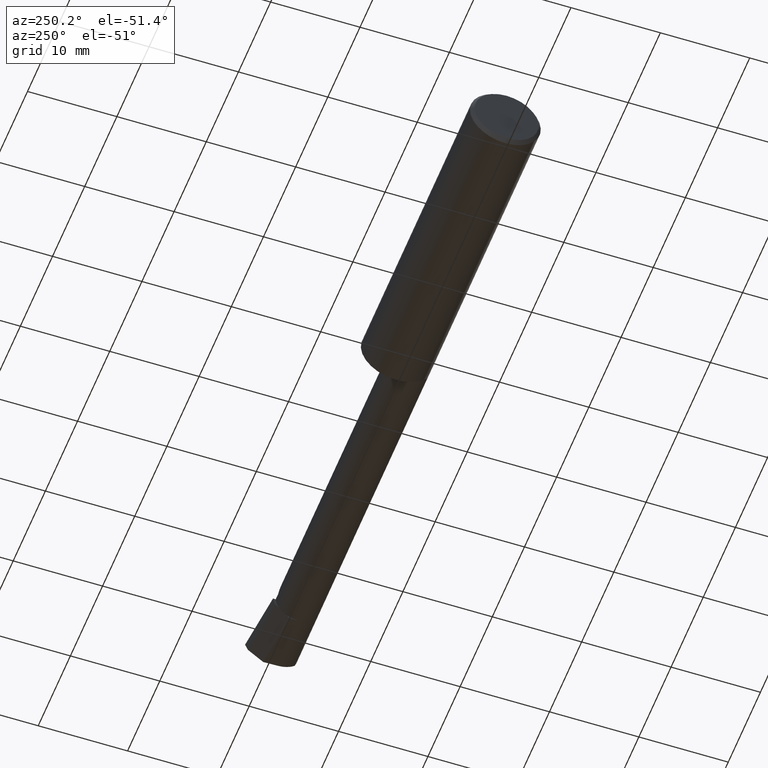
[diagram: clean part render]
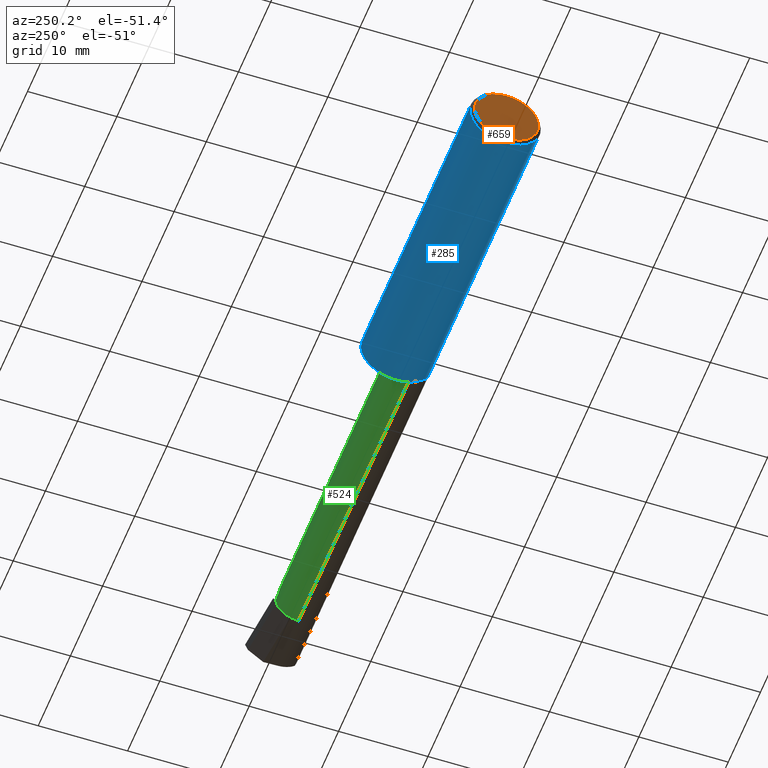
[diagram: same view with three faces highlighted in distinct colors, each labeled with its STEP entity id]
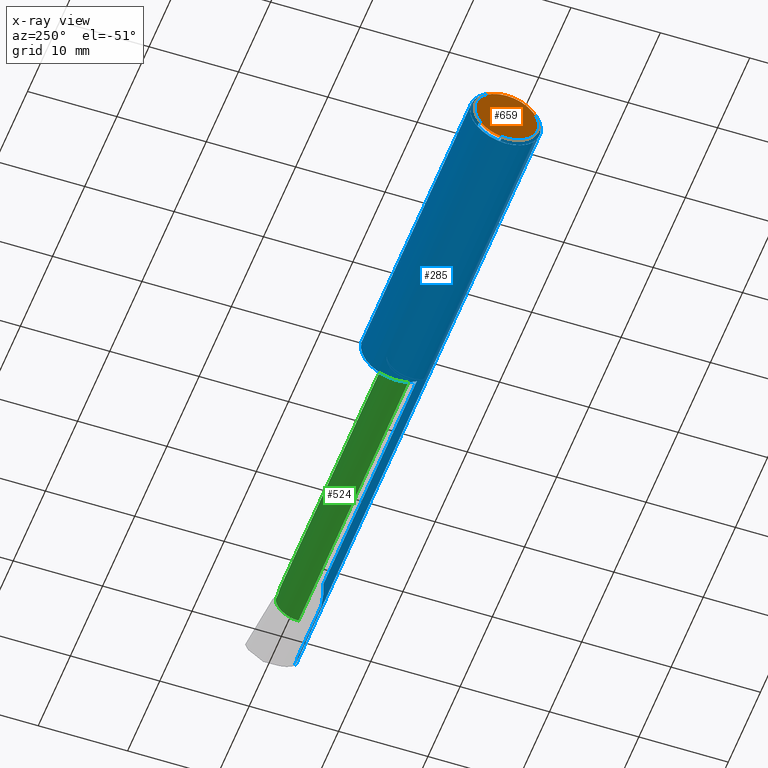
[diagram: x-ray of the same camera — body ghosted, the three highlighted faces saturated]
A machine part, auxiliary view with three faces highlighted in distinct colors.
The next image is the same camera in x-ray (body ghosted, the three faces saturated) — at least one of them is partly hidden behind the body in this view.
Their STEP definitions:

[orange] entity #659 — the highlighted planar face has unit normal (1, 0, 0).
#48 = DIRECTION ( 'NONE',  ( 0.0000000000000000000, 0.0000000000000000000, 1.000000000000000000 ) ) ;
#83 = FACE_OUTER_BOUND ( 'NONE', #604, .T. ) ;
#105 = DIRECTION ( 'NONE',  ( -1.000000000000000000, -0.0000000000000000000, -0.0000000000000000000 ) ) ;
#108 = ORIENTED_EDGE ( 'NONE', *, *, #115, .T. ) ;
#115 = EDGE_CURVE ( 'NONE', #209, #642, #367, .T. ) ;
#144 = DIRECTION ( 'NONE',  ( 0.0000000000000000000, 0.0000000000000000000, 1.000000000000000000 ) ) ;
#191 = DIRECTION ( 'NONE',  ( -1.000000000000000000, -0.0000000000000000000, -0.0000000000000000000 ) ) ;
#197 = CARTESIAN_POINT ( 'NONE',  ( 0.0000000000000000000, 0.0000000000000000000, 0.0000000000000000000 ) ) ;
#209 = VERTEX_POINT ( 'NONE', #673 ) ;
#224 = CIRCLE ( 'NONE', #559, 0.1410999999999996146 ) ;
#297 = DIRECTION ( 'NONE',  ( 0.0000000000000000000, 0.0000000000000000000, -1.000000000000000000 ) ) ;
#345 = AXIS2_PLACEMENT_3D ( 'NONE', #197, #191, #144 ) ;
#348 = AXIS2_PLACEMENT_3D ( 'NONE', #355, #621, #297 ) ;
#355 = CARTESIAN_POINT ( 'NONE',  ( 0.0000000000000000000, 0.0000000000000000000, 0.0000000000000000000 ) ) ;
#367 = CIRCLE ( 'NONE', #345, 0.1410999999999996146 ) ;
#402 = EDGE_CURVE ( 'NONE', #642, #209, #224, .T. ) ;
#475 = CARTESIAN_POINT ( 'NONE',  ( 0.0000000000000000000, 0.0000000000000000000, -0.1410999999999996146 ) ) ;
#509 = CARTESIAN_POINT ( 'NONE',  ( 0.0000000000000000000, 0.0000000000000000000, 0.0000000000000000000 ) ) ;
#559 = AXIS2_PLACEMENT_3D ( 'NONE', #509, #105, #48 ) ;
#561 = ORIENTED_EDGE ( 'NONE', *, *, #402, .T. ) ;
#572 = PLANE ( 'NONE',  #348 ) ;
#604 = EDGE_LOOP ( 'NONE', ( #561, #108 ) ) ;
#621 = DIRECTION ( 'NONE',  ( 1.000000000000000000, 0.0000000000000000000, 0.0000000000000000000 ) ) ;
#642 = VERTEX_POINT ( 'NONE', #475 ) ;
#659 = ADVANCED_FACE ( 'NONE', ( #83 ), #572, .F. ) ;
#673 = CARTESIAN_POINT ( 'NONE',  ( 0.0000000000000000000, 1.819825143532964315E-17, 0.1410999999999996146 ) ) ;

[blue] entity #285 — the highlighted cylindrical surface (partial cylindrical patch) has radius 3.9649 mm, axis along (-1, -0, -0).
#6 = CARTESIAN_POINT ( 'NONE',  ( 2.994029609882220999, -0.1561000000000000165, -6.741913824051284207E-17 ) ) ;
#17 = VERTEX_POINT ( 'NONE', #6 ) ;
#31 = AXIS2_PLACEMENT_3D ( 'NONE', #249, #251, #315 ) ;
#37 = CARTESIAN_POINT ( 'NONE',  ( 2.700000000000000178, -0.1560999999999999888, -2.449293598294708386E-17 ) ) ;
#39 = VECTOR ( 'NONE', #202, 39.37007874015748143 ) ;
#63 = EDGE_CURVE ( 'NONE', #17, #284, #196, .T. ) ;
#65 = VECTOR ( 'NONE', #354, 39.37007874015748143 ) ;
#67 = EDGE_CURVE ( 'NONE', #337, #246, #408, .T. ) ;
#68 = CARTESIAN_POINT ( 'NONE',  ( 0.0000000000000000000, -0.05756040305626783371, 0.1450999999999999512 ) ) ;
#73 = ORIENTED_EDGE ( 'NONE', *, *, #287, .T. ) ;
#78 = ORIENTED_EDGE ( 'NONE', *, *, #63, .T. ) ;
#86 = ORIENTED_EDGE ( 'NONE', *, *, #102, .T. ) ;
#96 = EDGE_CURVE ( 'NONE', #611, #17, #302, .T. ) ;
#102 = EDGE_CURVE ( 'NONE', #529, #479, #112, .T. ) ;
#112 = LINE ( 'NONE', #281, #690 ) ;
#114 = VERTEX_POINT ( 'NONE', #257 ) ;
#116 = ORIENTED_EDGE ( 'NONE', *, *, #185, .F. ) ;
#120 =( BOUNDED_CURVE ( )  B_SPLINE_CURVE ( 3, ( #684, #680, #627, #645 ),
 .UNSPECIFIED., .F., .T. ) 
 B_SPLINE_CURVE_WITH_KNOTS ( ( 4, 4 ),
 ( 4.712388980384689674, 5.140782042693055942 ),
 .UNSPECIFIED. ) 
 CURVE ( )  GEOMETRIC_REPRESENTATION_ITEM ( )  RATIONAL_B_SPLINE_CURVE ( ( 1.000000000000000000, 0.9847649979006014576, 0.9847649979006014576, 1.000000000000000000 ) ) 
 REPRESENTATION_ITEM ( '' )  );
#121 = CIRCLE ( 'NONE', #602, 0.1560999999999999888 ) ;
#122 = VERTEX_POINT ( 'NONE', #293 ) ;
#134 = EDGE_CURVE ( 'NONE', #611, #397, #323, .T. ) ;
#137 = CARTESIAN_POINT ( 'NONE',  ( 1.375000000000000000, -0.1419939393939393113, -0.06484544066771588677 ) ) ;
#140 = CARTESIAN_POINT ( 'NONE',  ( 1.362996561902687809, -0.1373850824029525242, -0.07416982835688742948 ) ) ;
#146 = CYLINDRICAL_SURFACE ( 'NONE', #419, 0.1560999999999999888 ) ;
#148 = CARTESIAN_POINT ( 'NONE',  ( 2.052500000000000213, -0.1419939393939393391, 0.06484544066771595616 ) ) ;
#150 = EDGE_CURVE ( 'NONE', #529, #576, #231, .T. ) ;
#158 = ORIENTED_EDGE ( 'NONE', *, *, #96, .T. ) ;
#159 = ORIENTED_EDGE ( 'NONE', *, *, #67, .T. ) ;
#164 = DIRECTION ( 'NONE',  ( 0.0000000000000000000, 0.0000000000000000000, -1.000000000000000000 ) ) ;
#165 = DIRECTION ( 'NONE',  ( 1.000000000000000000, 0.0000000000000000000, 0.0000000000000000000 ) ) ;
#174 = EDGE_CURVE ( 'NONE', #114, #479, #424, .T. ) ;
#178 = EDGE_CURVE ( 'NONE', #361, #122, #521, .T. ) ;
#185 = EDGE_CURVE ( 'NONE', #576, #246, #121, .T. ) ;
#195 = CARTESIAN_POINT ( 'NONE',  ( 1.367803744158915924, -0.1404244429940954553, -0.06818941713933171500 ) ) ;
#196 = LINE ( 'NONE', #416, #65 ) ;
#198 = CARTESIAN_POINT ( 'NONE',  ( 1.356590010709525229, -0.1296703571699488189, -0.08713627291423986509 ) ) ;
#199 = ORIENTED_EDGE ( 'NONE', *, *, #532, .F. ) ;
#202 = DIRECTION ( 'NONE',  ( 1.000000000000000000, 0.0000000000000000000, 0.0000000000000000000 ) ) ;
#215 = CARTESIAN_POINT ( 'NONE',  ( 1.350000000000000089, -0.09941818181818193323, 0.1203463132961160309 ) ) ;
#222 = VECTOR ( 'NONE', #290, 39.37007874015748143 ) ;
#223 = B_SPLINE_CURVE_WITH_KNOTS ( 'NONE', 3,
 ( #137, #484, #630, #359, #195, #486, #140, #537, #198, #581, #247, #632, #311, #685 ),
 .UNSPECIFIED., .F., .F.,
 ( 4, 2, 2, 2, 2, 2, 4 ),
 ( 1.961289441070630364E-07, 0.0001258819157031949344, 0.0002515677024622827991, 0.0005029392759804585285, 0.001005682423016819637, 0.001508425570053180962, 0.002011168717089542504 ),
 .UNSPECIFIED. ) ;
#231 = CIRCLE ( 'NONE', #510, 0.1560999999999999888 ) ;
#239 = CARTESIAN_POINT ( 'NONE',  ( 1.350000000000000089, 0.0000000000000000000, 0.0000000000000000000 ) ) ;
#240 = CARTESIAN_POINT ( 'NONE',  ( 0.01499999999999999424, 0.0000000000000000000, 0.0000000000000000000 ) ) ;
#246 = VERTEX_POINT ( 'NONE', #261 ) ;
#247 = CARTESIAN_POINT ( 'NONE',  ( 1.352063943834881377, -0.1181307192064763728, -0.1022448908112566918 ) ) ;
#248 = CARTESIAN_POINT ( 'NONE',  ( 1.350000000000000311, -0.1044500923568690148, 0.1161894481365070009 ) ) ;
#249 = CARTESIAN_POINT ( 'NONE',  ( 1.350000000000000089, 0.0000000000000000000, 0.0000000000000000000 ) ) ;
#251 = DIRECTION ( 'NONE',  ( 1.000000000000000000, 0.0000000000000000000, 0.0000000000000000000 ) ) ;
#253 = DIRECTION ( 'NONE',  ( 1.000000000000000000, 0.0000000000000000000, 0.0000000000000000000 ) ) ;
#255 = DIRECTION ( 'NONE',  ( 0.0000000000000000000, 0.0000000000000000000, 1.000000000000000000 ) ) ;
#257 = CARTESIAN_POINT ( 'NONE',  ( 1.350000000000000089, -0.09941818181818193323, -0.1203463132961160309 ) ) ;
#261 = CARTESIAN_POINT ( 'NONE',  ( 0.01499999999999999424, -0.05756040305626774350, 0.1451000000000000068 ) ) ;
#266 = CARTESIAN_POINT ( 'NONE',  ( 1.375000000000000000, -0.1419939393939393113, -0.06484544066771588677 ) ) ;
#271 = CARTESIAN_POINT ( 'NONE',  ( 2.994029609882220999, -0.1561000000000000165, -6.741913824051284207E-17 ) ) ;
#277 = CARTESIAN_POINT ( 'NONE',  ( 2.991270569402207702, -0.1560999999999999333, -0.02246288137099534954 ) ) ;
#281 = CARTESIAN_POINT ( 'NONE',  ( 0.0000000000000000000, 0.05756040305626788228, 0.1450999999999999235 ) ) ;
#284 = VERTEX_POINT ( 'NONE', #37 ) ;
#285 = ADVANCED_FACE ( 'NONE', ( #465 ), #146, .T. ) ;
#287 = EDGE_CURVE ( 'NONE', #284, #313, #120, .T. ) ;
#290 = DIRECTION ( 'NONE',  ( -1.000000000000000000, -0.0000000000000000000, -0.0000000000000000000 ) ) ;
#293 = CARTESIAN_POINT ( 'NONE',  ( 1.375000000000000000, -0.1419939393939392003, 0.06484544066771598392 ) ) ;
#296 = CARTESIAN_POINT ( 'NONE',  ( 2.988699611492194652, -0.1513252362624134539, -0.04441242967472209396 ) ) ;
#302 =( BOUNDED_CURVE ( )  B_SPLINE_CURVE ( 3, ( #310, #296, #277, #271 ),
 .UNSPECIFIED., .F., .F. ) 
 B_SPLINE_CURVE_WITH_KNOTS ( ( 4, 4 ),
 ( 0.9323538202067606084, 1.360746882515126543 ),
 .UNSPECIFIED. ) 
 CURVE ( )  GEOMETRIC_REPRESENTATION_ITEM ( )  RATIONAL_B_SPLINE_CURVE ( ( 1.000000000000000000, 0.9847649979006014576, 0.9847649979006014576, 1.000000000000000000 ) ) 
 REPRESENTATION_ITEM ( '' )  );
#309 = CARTESIAN_POINT ( 'NONE',  ( 0.01499999999999999424, 0.0000000000000000000, -0.1560999999999999888 ) ) ;
#310 = CARTESIAN_POINT ( 'NONE',  ( 2.986434241799654110, -0.1419939393939393391, -0.06484544066771595616 ) ) ;
#311 = CARTESIAN_POINT ( 'NONE',  ( 1.349999999999999867, -0.1044772303701486382, -0.1161670294028995659 ) ) ;
#313 = VERTEX_POINT ( 'NONE', #551 ) ;
#315 = DIRECTION ( 'NONE',  ( 0.0000000000000000000, 0.0000000000000000000, -1.000000000000000000 ) ) ;
#316 = CARTESIAN_POINT ( 'NONE',  ( 0.01499999999999999424, 0.0000000000000000000, 0.0000000000000000000 ) ) ;
#321 = DIRECTION ( 'NONE',  ( -1.000000000000000000, -0.0000000000000000000, -0.0000000000000000000 ) ) ;
#323 = LINE ( 'NONE', #618, #222 ) ;
#337 = VERTEX_POINT ( 'NONE', #438 ) ;
#354 = DIRECTION ( 'NONE',  ( -1.000000000000000000, -0.0000000000000000000, -0.0000000000000000000 ) ) ;
#359 = CARTESIAN_POINT ( 'NONE',  ( 1.368987086440955236, -0.1409404987250980346, -0.06711069163632696344 ) ) ;
#361 = VERTEX_POINT ( 'NONE', #482 ) ;
#371 = EDGE_LOOP ( 'NONE', ( #616, #158, #78, #73, #471, #587, #199, #159, #116, #525, #86, #710, #511 ) ) ;
#372 = CARTESIAN_POINT ( 'NONE',  ( 1.353262464810605747, -0.1222000088982462124, 0.09733625715976103321 ) ) ;
#382 = CARTESIAN_POINT ( 'NONE',  ( 1.352040506864491620, -0.1180407066556270063, 0.1023492120876696165 ) ) ;
#387 = CARTESIAN_POINT ( 'NONE',  ( 1.350415155711666371, -0.1091772789608304872, 0.1117554983051642081 ) ) ;
#389 = CARTESIAN_POINT ( 'NONE',  ( 1.363017092274624975, -0.1374043365808045869, 0.07413505991998654843 ) ) ;
#393 = CARTESIAN_POINT ( 'NONE',  ( 1.358665904659250856, -0.1330436853938332664, 0.08186319721956639150 ) ) ;
#397 = VERTEX_POINT ( 'NONE', #266 ) ;
#398 = CARTESIAN_POINT ( 'NONE',  ( 1.356590655429605885, -0.1296720675120677513, 0.08713405786343429715 ) ) ;
#403 = CARTESIAN_POINT ( 'NONE',  ( 1.371727793412431895, -0.1417279534125322760, 0.06543130843947160546 ) ) ;
#406 = CARTESIAN_POINT ( 'NONE',  ( 1.368988484139260553, -0.1409410548628159121, 0.06710952210203038892 ) ) ;
#408 = LINE ( 'NONE', #68, #667 ) ;
#410 = CARTESIAN_POINT ( 'NONE',  ( 1.364666516289592790, -0.1387430930441309329, 0.07158177069671509130 ) ) ;
#413 = CARTESIAN_POINT ( 'NONE',  ( 1.375000000000000000, -0.1419939393939392003, 0.06484544066771598392 ) ) ;
#416 = CARTESIAN_POINT ( 'NONE',  ( 5.398554261502604010E-32, -0.1560999999999999333, 3.697364387449882376E-16 ) ) ;
#419 = AXIS2_PLACEMENT_3D ( 'NONE', #589, #676, #495 ) ;
#422 = CARTESIAN_POINT ( 'NONE',  ( 1.367808428589329495, -0.1404263024719111519, 0.06818548243543454124 ) ) ;
#423 = CARTESIAN_POINT ( 'NONE',  ( 1.373328253254594289, -0.1419939393940947703, 0.06484544066737571444 ) ) ;
#424 = CIRCLE ( 'NONE', #540, 0.1560999999999999888 ) ;
#431 = DIRECTION ( 'NONE',  ( -1.000000000000000000, -0.0000000000000000000, -0.0000000000000000000 ) ) ;
#438 = CARTESIAN_POINT ( 'NONE',  ( 1.350000000000000089, -0.05756040305626776432, 0.1451000000000000068 ) ) ;
#439 = CARTESIAN_POINT ( 'NONE',  ( 0.01499999999999999424, 0.05756040305626788228, 0.1450999999999999235 ) ) ;
#457 = CIRCLE ( 'NONE', #31, 0.1560999999999999888 ) ;
#465 = FACE_OUTER_BOUND ( 'NONE', #371, .T. ) ;
#471 = ORIENTED_EDGE ( 'NONE', *, *, #485, .F. ) ;
#479 = VERTEX_POINT ( 'NONE', #544 ) ;
#482 = CARTESIAN_POINT ( 'NONE',  ( 1.350000000000000089, -0.09941818181818193323, 0.1203463132961160309 ) ) ;
#484 = CARTESIAN_POINT ( 'NONE',  ( 1.373318217257565088, -0.1419939393939393668, -0.06484544066771587290 ) ) ;
#485 = EDGE_CURVE ( 'NONE', #122, #313, #609, .T. ) ;
#486 = CARTESIAN_POINT ( 'NONE',  ( 1.364650979716348411, -0.1387334617349066934, -0.07160083655282353798 ) ) ;
#495 = DIRECTION ( 'NONE',  ( 0.0000000000000000000, 0.0000000000000000000, 1.000000000000000000 ) ) ;
#510 = AXIS2_PLACEMENT_3D ( 'NONE', #240, #550, #612 ) ;
#511 = ORIENTED_EDGE ( 'NONE', *, *, #682, .F. ) ;
#521 = B_SPLINE_CURVE_WITH_KNOTS ( 'NONE', 3,
 ( #215, #248, #387, #382, #372, #398, #393, #389, #410, #422, #406, #403, #423, #413 ),
 .UNSPECIFIED., .F., .F.,
 ( 4, 2, 2, 2, 2, 2, 4 ),
 ( 0.0001856976868807112932, 0.0006805519038525574115, 0.001175406120824403584, 0.001670260337796249757, 0.001917687446282172409, 0.002041401000525133735, 0.002165114554768095279 ),
 .UNSPECIFIED. ) ;
#525 = ORIENTED_EDGE ( 'NONE', *, *, #150, .F. ) ;
#529 = VERTEX_POINT ( 'NONE', #439 ) ;
#532 = EDGE_CURVE ( 'NONE', #337, #361, #457, .T. ) ;
#534 = CARTESIAN_POINT ( 'NONE',  ( 2.986434241799654110, -0.1419939393939393391, -0.06484544066771595616 ) ) ;
#537 = CARTESIAN_POINT ( 'NONE',  ( 1.358682090340783466, -0.1330572531291641103, -0.08183785561185245860 ) ) ;
#540 = AXIS2_PLACEMENT_3D ( 'NONE', #239, #165, #164 ) ;
#544 = CARTESIAN_POINT ( 'NONE',  ( 1.350000000000000089, 0.05756040305626788228, 0.1450999999999999512 ) ) ;
#550 = DIRECTION ( 'NONE',  ( -1.000000000000000000, -0.0000000000000000000, -0.0000000000000000000 ) ) ;
#551 = CARTESIAN_POINT ( 'NONE',  ( 2.635154559332284041, -0.1419939393939393113, 0.06484544066771599780 ) ) ;
#576 = VERTEX_POINT ( 'NONE', #309 ) ;
#581 = CARTESIAN_POINT ( 'NONE',  ( 1.353264033160802571, -0.1222037927935208795, -0.09733121088759354167 ) ) ;
#587 = ORIENTED_EDGE ( 'NONE', *, *, #178, .F. ) ;
#589 = CARTESIAN_POINT ( 'NONE',  ( 0.0000000000000000000, 0.0000000000000000000, 0.0000000000000000000 ) ) ;
#602 = AXIS2_PLACEMENT_3D ( 'NONE', #316, #431, #255 ) ;
#609 = LINE ( 'NONE', #148, #39 ) ;
#611 = VERTEX_POINT ( 'NONE', #534 ) ;
#612 = DIRECTION ( 'NONE',  ( 0.0000000000000000000, 0.0000000000000000000, 1.000000000000000000 ) ) ;
#616 = ORIENTED_EDGE ( 'NONE', *, *, #134, .F. ) ;
#618 = CARTESIAN_POINT ( 'NONE',  ( 2.052500000000000213, -0.1419939393939393391, -0.06484544066771595616 ) ) ;
#627 = CARTESIAN_POINT ( 'NONE',  ( 2.655587570325277813, -0.1513252362624135094, 0.04441242967472196906 ) ) ;
#630 = CARTESIAN_POINT ( 'NONE',  ( 1.371725699135996290, -0.1417275062431946897, -0.06543227863119814580 ) ) ;
#632 = CARTESIAN_POINT ( 'NONE',  ( 1.350428134837081684, -0.1092850169809857358, -0.1116497630123361728 ) ) ;
#645 = CARTESIAN_POINT ( 'NONE',  ( 2.635154559332284041, -0.1419939393939393113, 0.06484544066771599780 ) ) ;
#667 = VECTOR ( 'NONE', #321, 39.37007874015748143 ) ;
#676 = DIRECTION ( 'NONE',  ( -1.000000000000000000, -0.0000000000000000000, -0.0000000000000000000 ) ) ;
#680 = CARTESIAN_POINT ( 'NONE',  ( 2.677537118629004897, -0.1560999999999999888, 0.02246288137099521770 ) ) ;
#682 = EDGE_CURVE ( 'NONE', #397, #114, #223, .T. ) ;
#684 = CARTESIAN_POINT ( 'NONE',  ( 2.700000000000000178, -0.1560999999999999888, -2.449293598294708386E-17 ) ) ;
#685 = CARTESIAN_POINT ( 'NONE',  ( 1.350000000000000089, -0.09941818181818193323, -0.1203463132961160309 ) ) ;
#690 = VECTOR ( 'NONE', #253, 39.37007874015748143 ) ;
#710 = ORIENTED_EDGE ( 'NONE', *, *, #174, .F. ) ;

[green] entity #524 — the highlighted cylindrical surface (edge-blend (fillet) strip) has radius 2.5375 mm, axis along (-1, -0, -0).
#3 = VECTOR ( 'NONE', #499, 39.37007874015748143 ) ;
#15 = VERTEX_POINT ( 'NONE', #467 ) ;
#19 = AXIS2_PLACEMENT_3D ( 'NONE', #373, #40, #436 ) ;
#38 = CARTESIAN_POINT ( 'NONE',  ( 2.729999999999999982, -0.06599999999999998923, 0.0000000000000000000 ) ) ;
#40 = DIRECTION ( 'NONE',  ( -1.000000000000000000, -0.0000000000000000000, -0.0000000000000000000 ) ) ;
#46 = LINE ( 'NONE', #332, #3 ) ;
#54 = LINE ( 'NONE', #507, #142 ) ;
#81 = DIRECTION ( 'NONE',  ( -1.000000000000000000, -0.0000000000000000000, -0.0000000000000000000 ) ) ;
#92 = DIRECTION ( 'NONE',  ( 0.0000000000000000000, 0.0000000000000000000, 1.000000000000000000 ) ) ;
#104 = CARTESIAN_POINT ( 'NONE',  ( 1.375000000000000000, -0.06599999999999997535, -0.09989999999999990554 ) ) ;
#125 = CARTESIAN_POINT ( 'NONE',  ( 2.729999999999999982, -0.06599999999999998923, 0.0000000000000000000 ) ) ;
#127 = DIRECTION ( 'NONE',  ( -1.000000000000000000, -0.0000000000000000000, -0.0000000000000000000 ) ) ;
#136 = DIRECTION ( 'NONE',  ( 0.0000000000000000000, 0.0000000000000000000, 1.000000000000000000 ) ) ;
#138 = ORIENTED_EDGE ( 'NONE', *, *, #607, .T. ) ;
#142 = VECTOR ( 'NONE', #444, 39.37007874015748143 ) ;
#143 = ORIENTED_EDGE ( 'NONE', *, *, #256, .T. ) ;
#147 = ORIENTED_EDGE ( 'NONE', *, *, #356, .F. ) ;
#154 = CARTESIAN_POINT ( 'NONE',  ( 0.0000000000000000000, -0.06599999999999998923, 0.0000000000000000000 ) ) ;
#155 = FACE_OUTER_BOUND ( 'NONE', #469, .T. ) ;
#167 = CARTESIAN_POINT ( 'NONE',  ( 2.600099999999998968, -0.007479934881072191483, 0.09989999999999998881 ) ) ;
#189 = ORIENTED_EDGE ( 'NONE', *, *, #378, .T. ) ;
#193 = AXIS2_PLACEMENT_3D ( 'NONE', #38, #432, #92 ) ;
#211 = DIRECTION ( 'NONE',  ( 0.0000000000000000000, 0.0000000000000000000, 1.000000000000000000 ) ) ;
#235 = CARTESIAN_POINT ( 'NONE',  ( 2.729999999999999982, 0.02031953758082122655, -0.05028864118101811914 ) ) ;
#241 = DIRECTION ( 'NONE',  ( 0.0000000000000000000, 0.0000000000000000000, 1.000000000000000000 ) ) ;
#254 = ORIENTED_EDGE ( 'NONE', *, *, #336, .T. ) ;
#256 = EDGE_CURVE ( 'NONE', #530, #518, #376, .T. ) ;
#280 = CIRCLE ( 'NONE', #193, 0.09989999999999998881 ) ;
#289 = ORIENTED_EDGE ( 'NONE', *, *, #562, .F. ) ;
#319 = CARTESIAN_POINT ( 'NONE',  ( 2.600099999999999412, -0.06599999999999998923, 0.09989999999999998881 ) ) ;
#332 = CARTESIAN_POINT ( 'NONE',  ( 0.0000000000000000000, -0.06599999999999998923, 0.09989999999999998881 ) ) ;
#336 = EDGE_CURVE ( 'NONE', #447, #450, #483, .T. ) ;
#341 = AXIS2_PLACEMENT_3D ( 'NONE', #125, #127, #136 ) ;
#356 = EDGE_CURVE ( 'NONE', #530, #487, #46, .T. ) ;
#366 = CARTESIAN_POINT ( 'NONE',  ( 5.398554261502604010E-32, 0.03389999999999997876, 3.697364387449882376E-16 ) ) ;
#369 = VERTEX_POINT ( 'NONE', #104 ) ;
#373 = CARTESIAN_POINT ( 'NONE',  ( 1.375000000000000000, -0.06599999999999998923, 0.0000000000000000000 ) ) ;
#376 =( BOUNDED_CURVE ( )  B_SPLINE_CURVE ( 3, ( #377, #167, #697, #702 ),
 .UNSPECIFIED., .F., .F. ) 
 B_SPLINE_CURVE_WITH_KNOTS ( ( 4, 4 ),
 ( 0.0000000000000000000, 1.570796326794896780 ),
 .UNSPECIFIED. ) 
 CURVE ( )  GEOMETRIC_REPRESENTATION_ITEM ( )  RATIONAL_B_SPLINE_CURVE ( ( 1.000000000000000000, 0.8047378541243649375, 0.8047378541243649375, 1.000000000000000000 ) ) 
 REPRESENTATION_ITEM ( '' )  );
#377 = CARTESIAN_POINT ( 'NONE',  ( 2.600099999999999412, -0.06599999999999998923, 0.09989999999999998881 ) ) ;
#378 = EDGE_CURVE ( 'NONE', #15, #369, #54, .T. ) ;
#384 = VERTEX_POINT ( 'NONE', #434 ) ;
#401 = VECTOR ( 'NONE', #579, 39.37007874015748143 ) ;
#432 = DIRECTION ( 'NONE',  ( 1.000000000000000000, 0.0000000000000000000, 0.0000000000000000000 ) ) ;
#434 = CARTESIAN_POINT ( 'NONE',  ( 2.729999999999999982, -0.01311981690363730677, -0.08475668844224126808 ) ) ;
#436 = DIRECTION ( 'NONE',  ( 0.0000000000000000000, 0.0000000000000000000, 1.000000000000000000 ) ) ;
#441 = ORIENTED_EDGE ( 'NONE', *, *, #613, .T. ) ;
#444 = DIRECTION ( 'NONE',  ( -1.000000000000000000, -0.0000000000000000000, -0.0000000000000000000 ) ) ;
#447 = VERTEX_POINT ( 'NONE', #671 ) ;
#450 = VERTEX_POINT ( 'NONE', #235 ) ;
#467 = CARTESIAN_POINT ( 'NONE',  ( 2.729999999999999982, -0.06599999999999998923, -0.09990000000000000269 ) ) ;
#469 = EDGE_LOOP ( 'NONE', ( #138, #189, #623, #147, #143, #441, #254, #289 ) ) ;
#480 = CARTESIAN_POINT ( 'NONE',  ( 2.729999999999999982, -0.06599999999999998923, 0.0000000000000000000 ) ) ;
#483 = CIRCLE ( 'NONE', #341, 0.09990000000000007208 ) ;
#487 = VERTEX_POINT ( 'NONE', #527 ) ;
#498 = CIRCLE ( 'NONE', #19, 0.09989999999999990554 ) ;
#499 = DIRECTION ( 'NONE',  ( -1.000000000000000000, -0.0000000000000000000, -0.0000000000000000000 ) ) ;
#507 = CARTESIAN_POINT ( 'NONE',  ( 0.0000000000000000000, -0.06599999999999998923, -0.09989999999999998881 ) ) ;
#515 = EDGE_CURVE ( 'NONE', #487, #369, #498, .T. ) ;
#518 = VERTEX_POINT ( 'NONE', #552 ) ;
#524 = ADVANCED_FACE ( 'NONE', ( #155 ), #574, .T. ) ;
#527 = CARTESIAN_POINT ( 'NONE',  ( 1.375000000000000000, -0.06599999999999998923, 0.09989999999999990554 ) ) ;
#530 = VERTEX_POINT ( 'NONE', #319 ) ;
#548 = AXIS2_PLACEMENT_3D ( 'NONE', #480, #81, #241 ) ;
#552 = CARTESIAN_POINT ( 'NONE',  ( 2.700000000000000178, 0.03389999999999990937, -2.449293598294708386E-17 ) ) ;
#562 = EDGE_CURVE ( 'NONE', #384, #450, #280, .T. ) ;
#574 = CYLINDRICAL_SURFACE ( 'NONE', #643, 0.09989999999999998881 ) ;
#579 = DIRECTION ( 'NONE',  ( 1.000000000000000000, 0.0000000000000000000, 0.0000000000000000000 ) ) ;
#607 = EDGE_CURVE ( 'NONE', #384, #15, #679, .T. ) ;
#613 = EDGE_CURVE ( 'NONE', #518, #447, #700, .T. ) ;
#623 = ORIENTED_EDGE ( 'NONE', *, *, #515, .F. ) ;
#643 = AXIS2_PLACEMENT_3D ( 'NONE', #154, #699, #211 ) ;
#671 = CARTESIAN_POINT ( 'NONE',  ( 2.729999999999999982, 0.03390000000000008284, 3.697364387449886320E-16 ) ) ;
#679 = CIRCLE ( 'NONE', #548, 0.09990000000000007208 ) ;
#697 = CARTESIAN_POINT ( 'NONE',  ( 2.641479934881072023, 0.03390000000000000652, 0.05852006511892776652 ) ) ;
#699 = DIRECTION ( 'NONE',  ( -1.000000000000000000, -0.0000000000000000000, -0.0000000000000000000 ) ) ;
#700 = LINE ( 'NONE', #366, #401 ) ;
#702 = CARTESIAN_POINT ( 'NONE',  ( 2.700000000000000178, 0.03389999999999990937, -2.449293598294708386E-17 ) ) ;